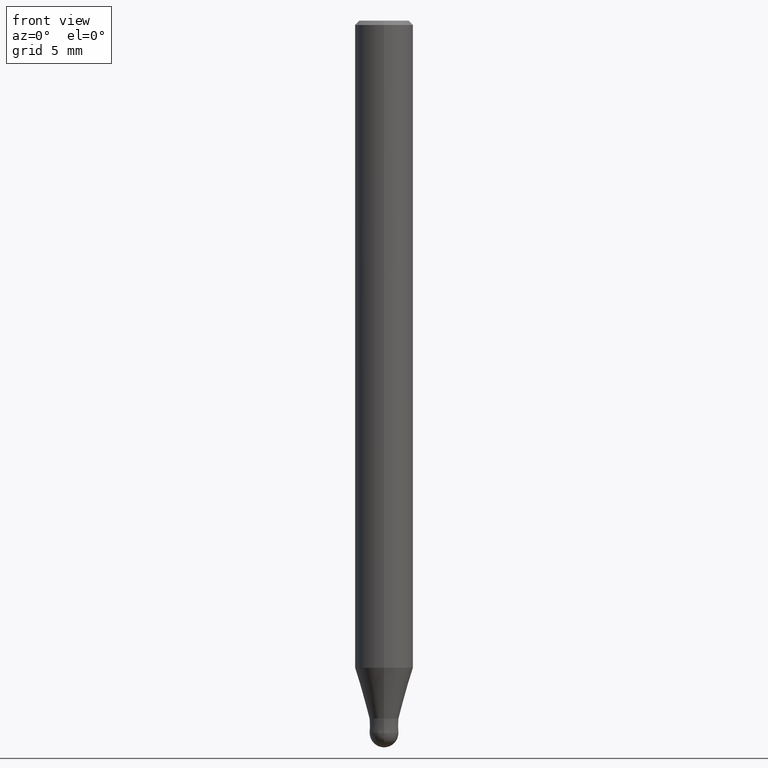
[diagram: clean part render]
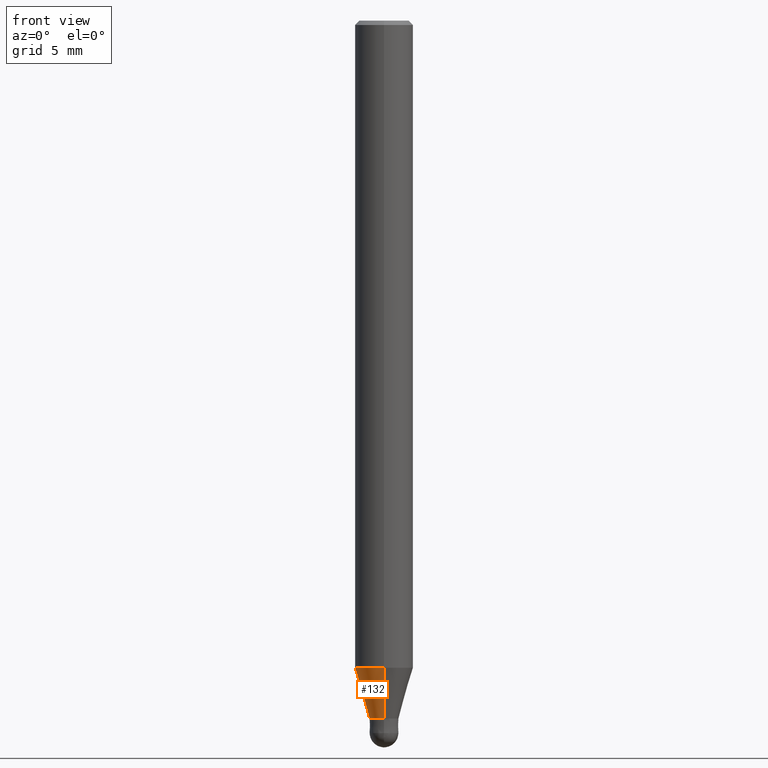
[diagram: same view with one face highlighted and labeled with its STEP entity id]
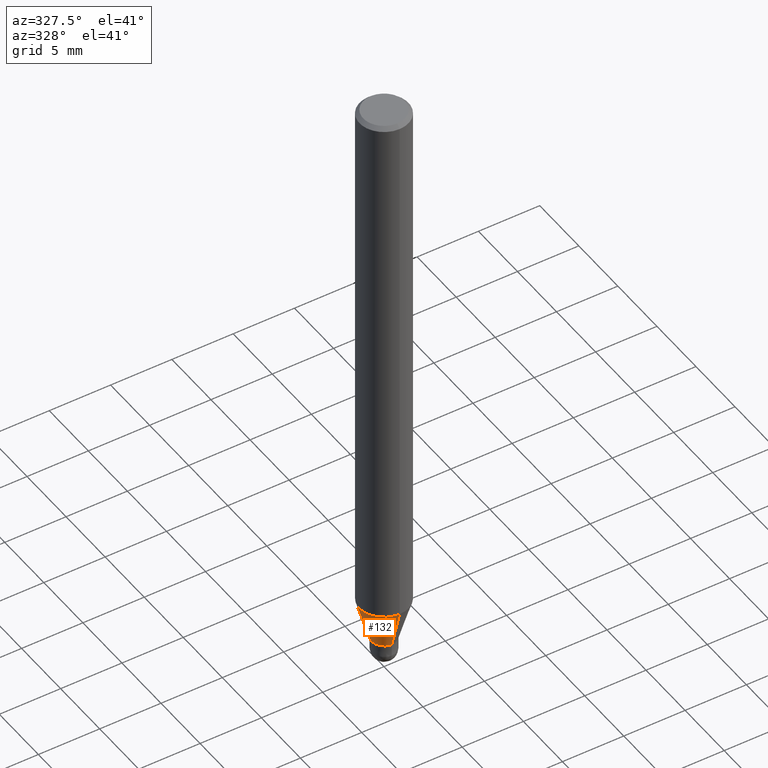
[diagram: same view with one face highlighted and labeled with its STEP entity id]
A machine part, front view. The second image highlights one B-rep face of the part: STEP entity #132.
A second angle (auxiliary view) of the same face is appended — the face is thin or edge-on in the first view.
In plain terms, the highlighted conical surface has half-angle 16.002 deg.
Its self-contained STEP definition (entity closure, byte-faithful):
#104=VERTEX_POINT('',#231);
#114=VERTEX_POINT('',#242);
#116=EDGE_CURVE('',#114,#104,#244,.T.);
#132=ADVANCED_FACE('',(#262),#263,.T.);
#136=VERTEX_POINT('',#267);
#140=EDGE_CURVE('',#114,#136,#272,.T.);
#154=VERTEX_POINT('',#288);
#158=EDGE_CURVE('',#136,#154,#294,.T.);
#186=EDGE_CURVE('',#154,#104,#326,.T.);
#231=CARTESIAN_POINT('',(0.0,0.99995,-48.0));
#242=CARTESIAN_POINT('',(1.22454512350469E-016,-0.99995,-48.0));
#244=CIRCLE('',#386,0.99995);
#262=FACE_OUTER_BOUND('',#409,.T.);
#263=CONICAL_SURFACE('',#410,1.49995,0.279284171542493);
#267=CARTESIAN_POINT('',(2.44915147732706E-016,-1.99995,-44.513));
#272=LINE('',#421,#422);
#288=CARTESIAN_POINT('',(0.0,1.99995,-44.513));
#294=CIRCLE('',#446,1.99995);
#326=LINE('',#485,#486);
#386=AXIS2_PLACEMENT_3D('',#528,#529,#530);
#409=EDGE_LOOP('',(#554,#555,#556,#557));
#410=AXIS2_PLACEMENT_3D('',#558,#559,#560);
#421=CARTESIAN_POINT('',(1.83684830041587E-016,-1.49995,-46.2565));
#422=VECTOR('',#572,1.0);
#446=AXIS2_PLACEMENT_3D('',#602,#603,#604);
#485=CARTESIAN_POINT('',(-1.83684830041587E-016,1.49995,-46.2565));
#486=VECTOR('',#646,1.0);
#528=CARTESIAN_POINT('',(0.0,0.0,-48.0));
#529=DIRECTION('',(0.0,0.0,-1.0));
#530=DIRECTION('',(0.0,1.0,0.0));
#554=ORIENTED_EDGE('',*,*,#186,.T.);
#555=ORIENTED_EDGE('',*,*,#116,.F.);
#556=ORIENTED_EDGE('',*,*,#140,.T.);
#557=ORIENTED_EDGE('',*,*,#158,.T.);
#558=CARTESIAN_POINT('',(0.0,0.0,-46.2565));
#559=DIRECTION('',(-0.0,-0.0,1.0));
#560=DIRECTION('',(0.0,1.0,0.0));
#572=DIRECTION('',(3.3758432755158E-017,-0.275667626987133,0.961253015304131));
#602=CARTESIAN_POINT('',(0.0,0.0,-44.513));
#603=DIRECTION('',(0.0,0.0,-1.0));
#604=DIRECTION('',(0.0,1.0,0.0));
#646=DIRECTION('',(3.3758432755158E-017,-0.275667626987133,-0.961253015304131));